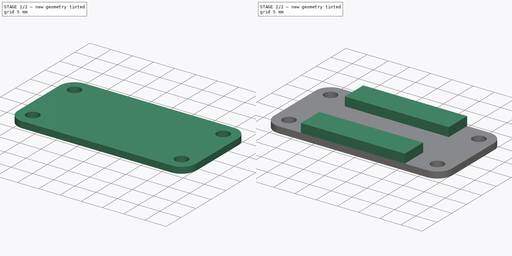
[diagram: build sequence overview — one tinted view per stage of 2, left to right]
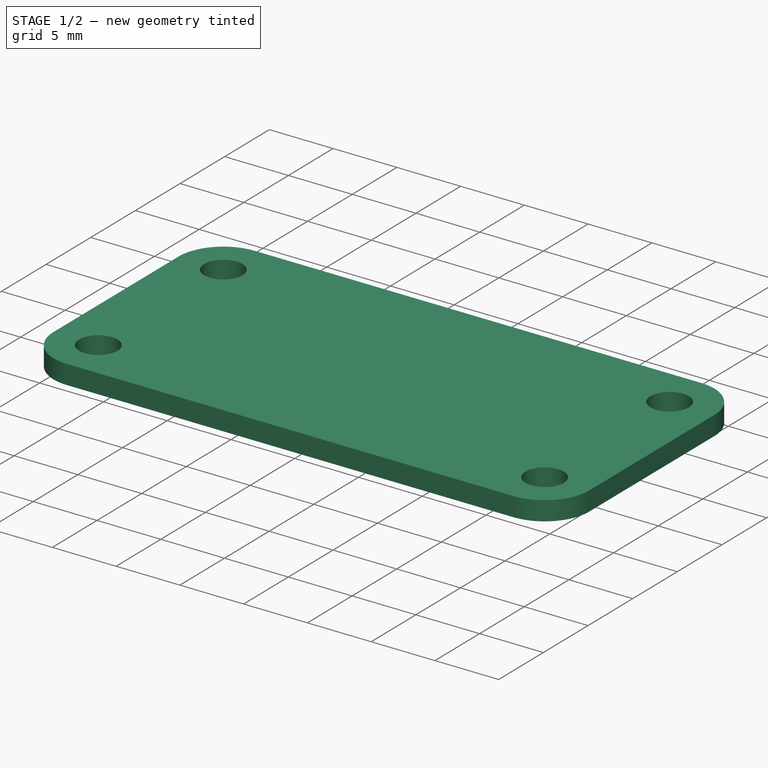
[diagram: stage 1 of 2 — iso view after this stage's code; geometry added in this stage tinted green]
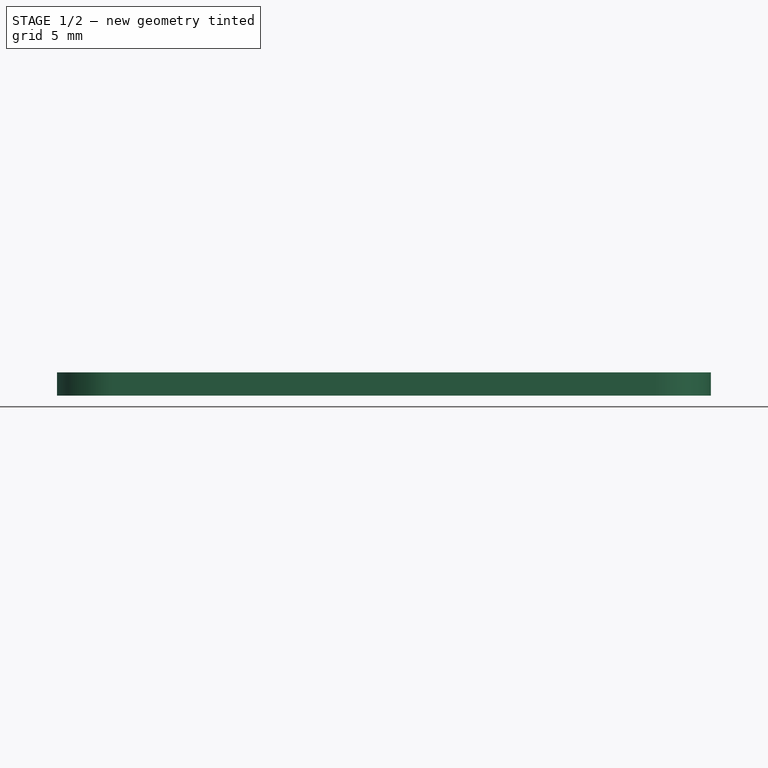
[diagram: stage 1 of 2 — front view after this stage's code; geometry added in this stage tinted green]
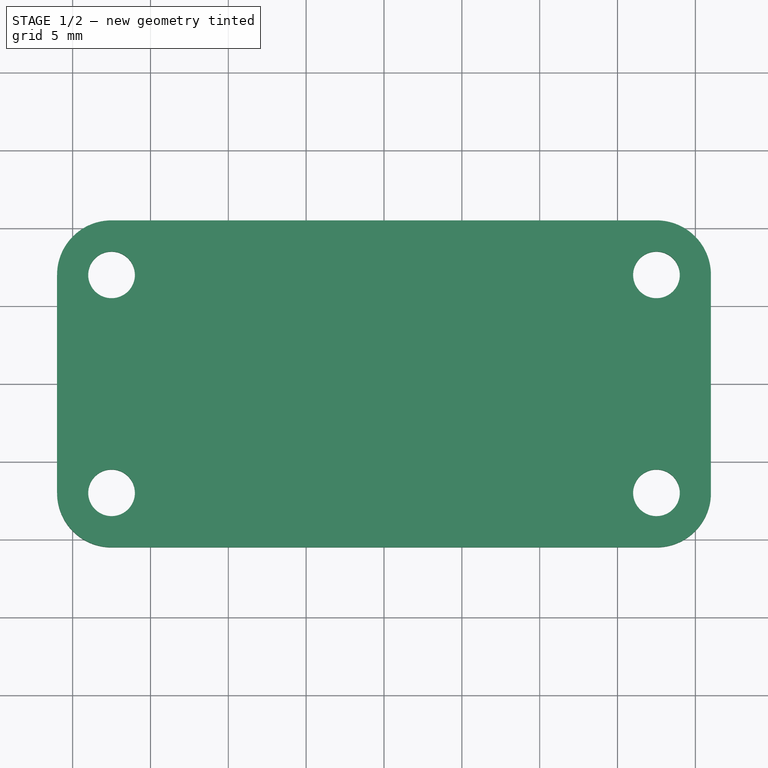
[diagram: stage 1 of 2 — top view after this stage's code; geometry added in this stage tinted green]
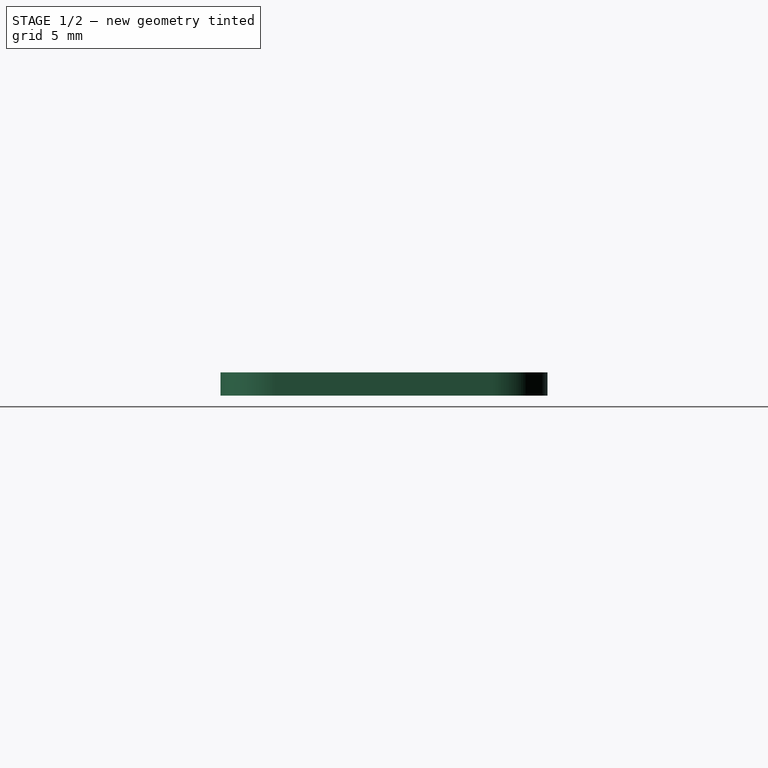
[diagram: stage 1 of 2 — right view after this stage's code; geometry added in this stage tinted green]
FCSTD DOCUMENT  (FreeCAD 0.20R29410 (Git))
Label: FPC_to_FFC_board
License: All rights reserved
LicenseURL: http://en.wikipedia.org/wiki/All_rights_reserved
objects: PartDesign::CoordinateSystem×5, Sketcher::SketchObject×2, PartDesign::Pad×2, PartDesign::Body×1
note: 12 computed .brp shape members not serialized (recipe doc carries the construction recipe); baked Part::Feature solids carry a one-line shape summary decoded from their .brp

FEATURE [PartDesign::CoordinateSystem] LCS_0
  AttacherType = Attacher::AttachEngine3D
  MapMode = 2
  Support = -> [X_Axis]
FEATURE [Sketcher::SketchObject] Sketch
  FullyConstrained = true
  MapMode = 5
  Support = -> [XY_Plane]
  sketch-geometry (14):
    g0: ArcOfCircle CenterX=-17.5 CenterY=7 CenterZ=0 NormalX=0 NormalY=0 NormalZ=1 AngleXU=0 Radius=3.5 StartAngle=1.5708 EndAngle=3.14159
    g1: LineSegment StartX=-17.5 StartY=10.5 StartZ=0 EndX=17.5 EndY=10.5 EndZ=0
    g2: ArcOfCircle CenterX=17.5 CenterY=7 CenterZ=0 NormalX=0 NormalY=0 NormalZ=1 AngleXU=0 Radius=3.5 StartAngle=0 EndAngle=1.5708
    g3: LineSegment StartX=21 StartY=7 StartZ=0 EndX=21 EndY=-7 EndZ=0
    g4: ArcOfCircle CenterX=17.5 CenterY=-7 CenterZ=0 NormalX=0 NormalY=0 NormalZ=1 AngleXU=0 Radius=3.5 StartAngle=4.71239 EndAngle=6.28319
    g5: LineSegment StartX=17.5 StartY=-10.5 StartZ=0 EndX=-17.5 EndY=-10.5 EndZ=0
    g6: ArcOfCircle CenterX=-17.5 CenterY=-7 CenterZ=0 NormalX=0 NormalY=0 NormalZ=1 AngleXU=0 Radius=3.5 StartAngle=3.14159 EndAngle=4.71239
    g7: LineSegment StartX=-21 StartY=-7 StartZ=0 EndX=-21 EndY=7 EndZ=0
    g8: GeomPoint X=-21 Y=10.5 Z=0
    g9: GeomPoint X=21 Y=-10.5 Z=0
    g10: Circle CenterX=-17.5 CenterY=7 CenterZ=0 NormalX=0 NormalY=0 NormalZ=1 AngleXU=0 Radius=1.5
    g11: Circle CenterX=-17.5 CenterY=-7 CenterZ=0 NormalX=0 NormalY=0 NormalZ=1 AngleXU=0 Radius=1.5
    g12: Circle CenterX=17.5 CenterY=7 CenterZ=0 NormalX=0 NormalY=0 NormalZ=1 AngleXU=0 Radius=1.5
    g13: Circle CenterX=17.5 CenterY=-7 CenterZ=0 NormalX=0 NormalY=0 NormalZ=1 AngleXU=0 Radius=1.5
  constraints (31):
    c: Tangent(g0,g1) = 1.5708
    c: Tangent(g1,g2) = 1.5708
    c: Tangent(g2,g3) = 1.5708
    c: Tangent(g3,g4) = 1.5708
    c: Tangent(g4,g5) = 1.5708
    c: Tangent(g5,g6) = 1.5708
    c: Tangent(g6,g7) = 1.5708
    c: Tangent(g7,g0) = 1.5708
    c: Horizontal(g1)
    c: Horizontal(g5)
    c: Vertical(g3)
    c: Vertical(g7)
    c: Equal(g0,g2)
    c: Equal(g2,g4)
    c: Equal(g4,g6)
    c: PointOnObject(g8,g1)
    c: PointOnObject(g8,g7)
    c: PointOnObject(g9,g3)
    c: PointOnObject(g9,g5)
    c: Symmetric(g4,g0,g-1)
    c: DistanceX(g0,g2) = 42
    c: DistanceY(g4,g1) = 21
    c: Coincident(g10,g0)
    c: Coincident(g11,g6)
    c: Coincident(g12,g2)
    c: Coincident(g13,g4)
    c: Equal(g10,g11)
    c: Equal(g11,g12)
    c: Equal(g12,g13)
    c: Diameter(g13) = 3
    c: DistanceY(g0,g0) = 3.5
FEATURE [PartDesign::Pad] Pad  label="PCB"
  Direction = (0,0,1)
  Length = 1.5
  Length2 = 10
  Profile = -> Sketch
  ReferenceAxis = -> Sketch [N_Axis]
  Refine = true
  Type = 0
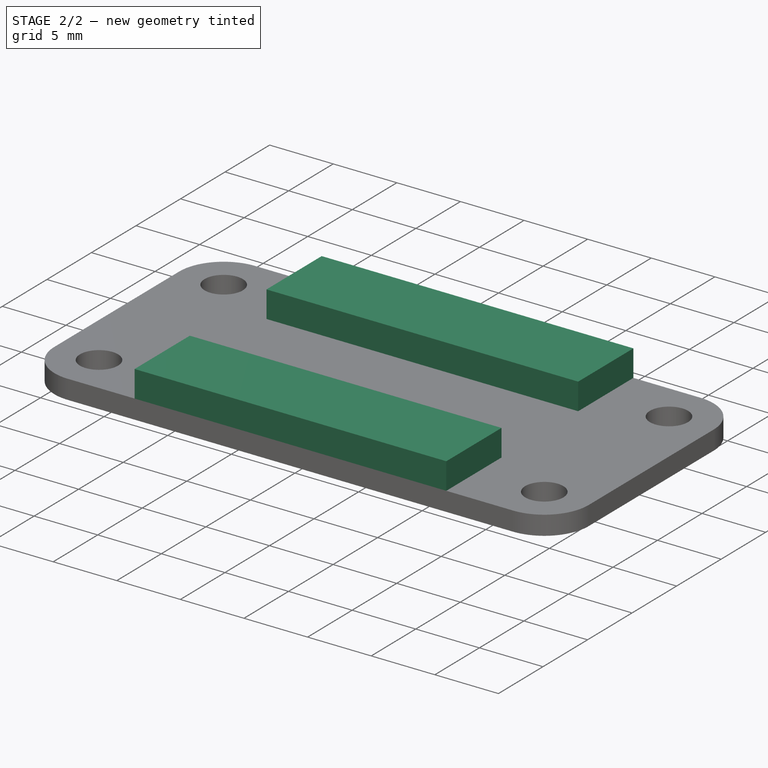
[diagram: stage 2 of 2 — iso view after this stage's code; geometry added in this stage tinted green]
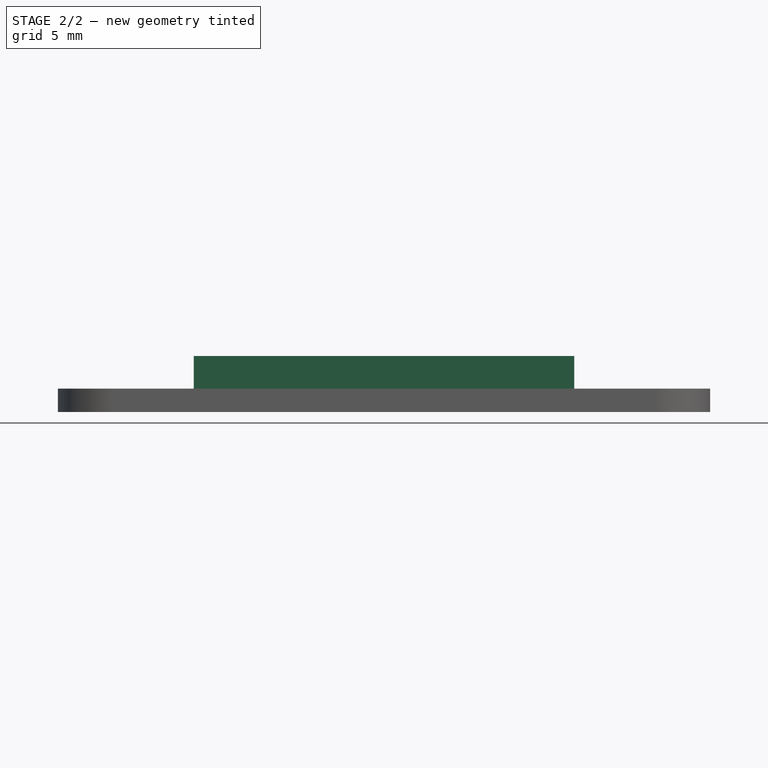
[diagram: stage 2 of 2 — front view after this stage's code; geometry added in this stage tinted green]
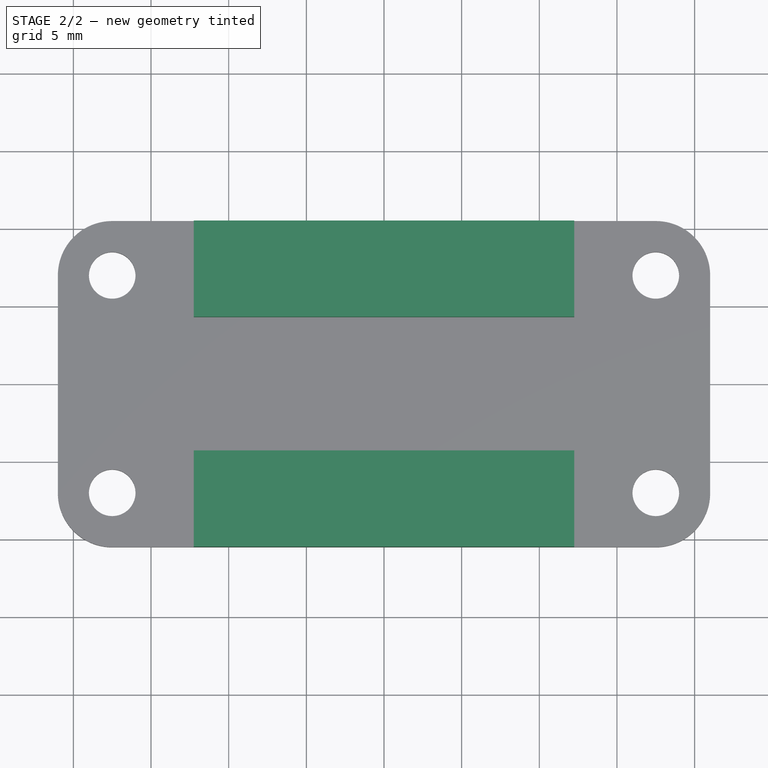
[diagram: stage 2 of 2 — top view after this stage's code; geometry added in this stage tinted green]
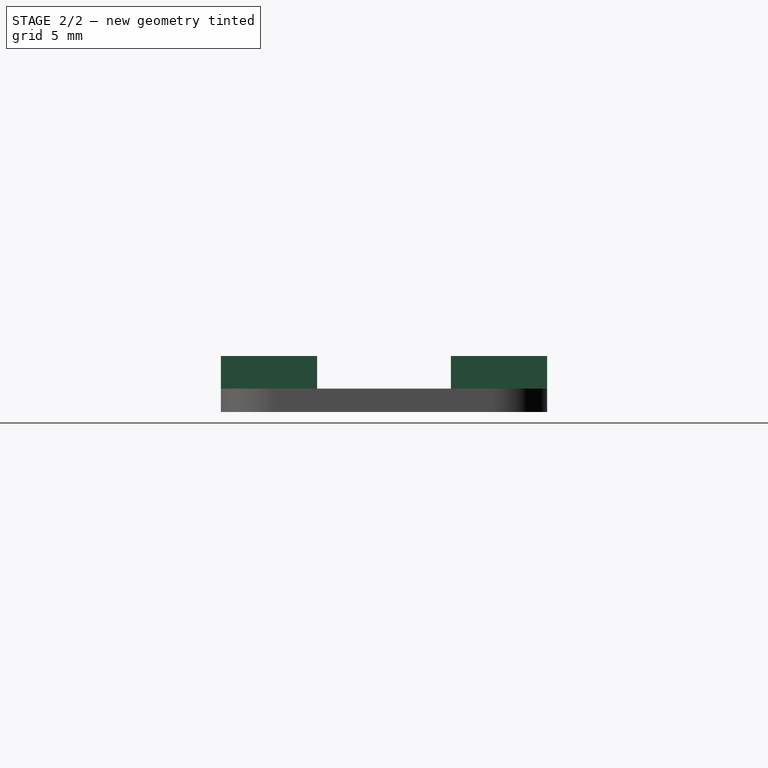
[diagram: stage 2 of 2 — right view after this stage's code; geometry added in this stage tinted green]
FEATURE [Sketcher::SketchObject] Sketch001
  ExternalGeometry = -> [Sketch]
  FullyConstrained = false
  MapMode = 5
  Support = -> [XY_Plane]
  sketch-geometry (8):
    g0: LineSegment StartX=-12.25 StartY=10.5 StartZ=0 EndX=12.25 EndY=10.5 EndZ=0
    g1: LineSegment StartX=12.25 StartY=10.5 StartZ=0 EndX=12.25 EndY=4.30348 EndZ=0
    g2: LineSegment StartX=12.25 StartY=4.30348 StartZ=0 EndX=-12.25 EndY=4.30348 EndZ=0
    g3: LineSegment StartX=-12.25 StartY=4.30348 StartZ=0 EndX=-12.25 EndY=10.5 EndZ=0
    g4: LineSegment StartX=-12.25 StartY=-10.5 StartZ=0 EndX=12.25 EndY=-10.5 EndZ=0
    g5: LineSegment StartX=12.25 StartY=-10.5 StartZ=0 EndX=12.25 EndY=-4.30348 EndZ=0
    g6: LineSegment StartX=12.25 StartY=-4.30348 StartZ=0 EndX=-12.25 EndY=-4.30348 EndZ=0
    g7: LineSegment StartX=-12.25 StartY=-4.30348 StartZ=0 EndX=-12.25 EndY=-10.5 EndZ=0
  constraints (21):
    c: Coincident(g0,g1)
    c: Coincident(g1,g2)
    c: Coincident(g2,g3)
    c: Coincident(g3,g0)
    c: Horizontal(g0)
    c: Vertical(g1)
    c: Vertical(g3)
    c: PointOnObject(g0,g-3)
    c: Coincident(g4,g5)
    c: Coincident(g5,g6)
    c: Coincident(g6,g7)
    c: Coincident(g7,g4)
    c: Horizontal(g4)
    c: Vertical(g5)
    c: Vertical(g7)
    c: PointOnObject(g4,g-4)
    c: Symmetric(g5,g6,g-2)
    c: Symmetric(g1,g2,g-2)
    c: Equal(g6,g2)
    c: DistanceX(g2,g2) = 24.5
    c: Equal(g1,g5)
FEATURE [PartDesign::Pad] Pad001  label="connetors"
  BaseFeature = -> Pad
  Direction = (0,0,1)
  Length = 3.6
  Length2 = 10
  Profile = -> Sketch001
  ReferenceAxis = -> Sketch001 [N_Axis]
  Refine = true
  Type = 0
FEATURE [PartDesign::CoordinateSystem] mounting_point_A  label="mounting-point-A"
  AttacherType = Attacher::AttachEngine3D
  MapMode = 11
  Placement = pos=(-17.5,-7,0) rot=(0,0,1;1.5708rad)
  Support = -> [Pad001]
FEATURE [PartDesign::CoordinateSystem] mounting_point_B  label="mounting-point-B"
  AttacherType = Attacher::AttachEngine3D
  MapMode = 11
  Placement = pos=(17.5,-7,0) rot=(0,0,1;1.5708rad)
  Support = -> [Pad001]
FEATURE [PartDesign::CoordinateSystem] mounting_point_C  label="mounting-point-C"
  AttacherType = Attacher::AttachEngine3D
  MapMode = 11
  Placement = pos=(17.5,7,0) rot=(0,0,1;1.5708rad)
  Support = -> [Pad001]
FEATURE [PartDesign::CoordinateSystem] mounting_point_D  label="mounting-point-D"
  AttacherType = Attacher::AttachEngine3D
  MapMode = 11
  Placement = pos=(-17.5,7,0) rot=(0,0,1;1.5708rad)
  Support = -> [Pad001]
FEATURE [PartDesign::Body] FPC_to_FFC  label="FPC-to-FFC"
  Group = -> [LCS_0,Sketch,Pad,Sketch001,Pad001,mounting_point_A,mounting_point_B,mounting_point_C,mounting_point_D]
  Origin = -> Origin
  Tip = -> Pad001
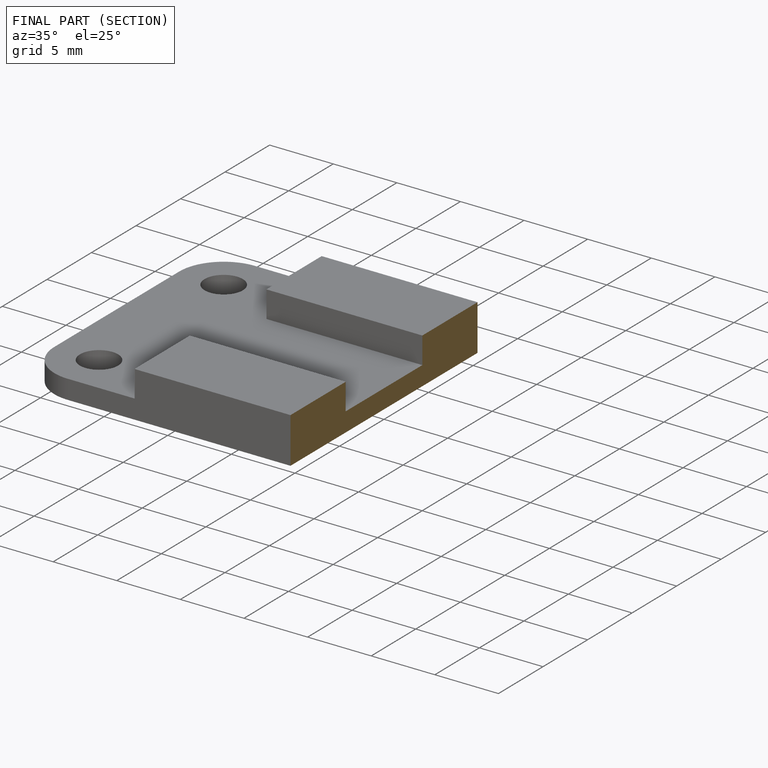
[diagram: finished part — half-section view (interior)]
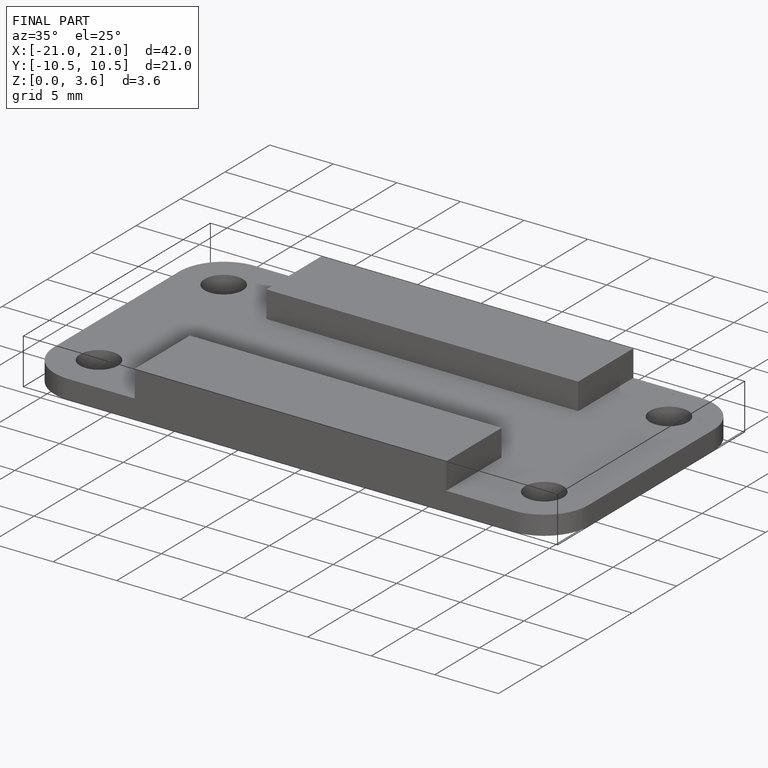
[diagram: finished part — iso view with bounding-box wireframe]
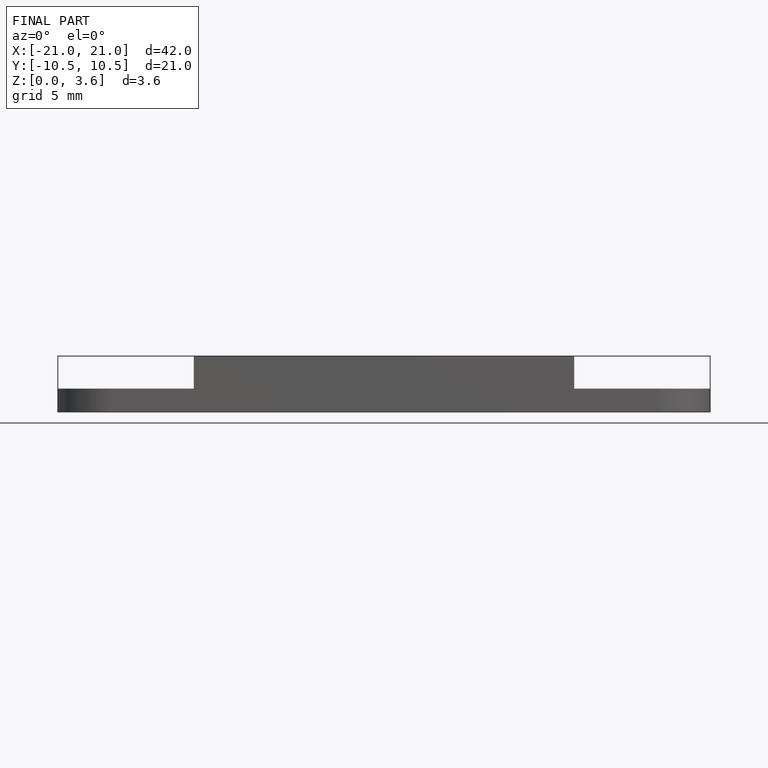
[diagram: finished part — front view with bounding-box wireframe]
